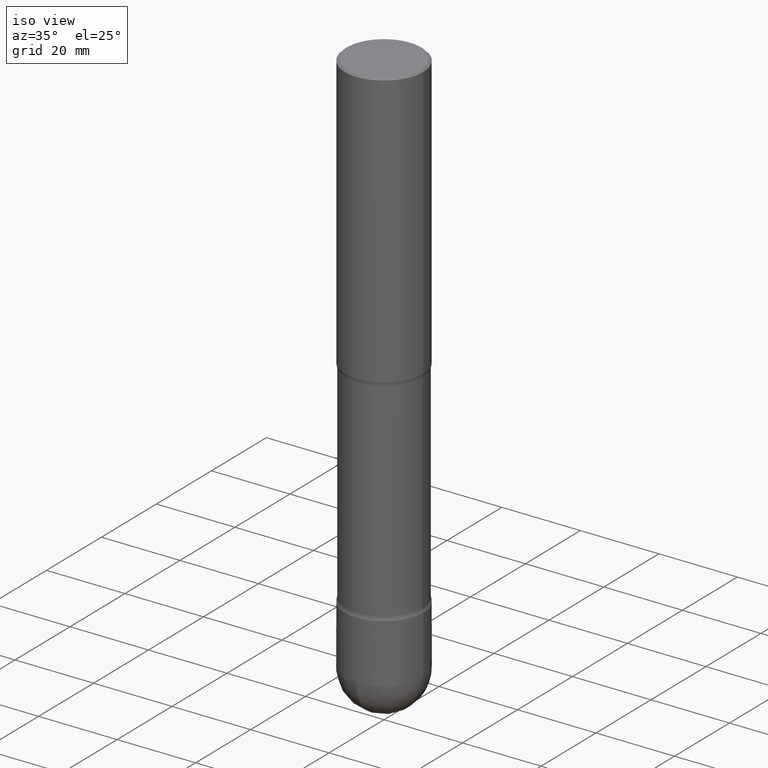
[diagram: clean part render]
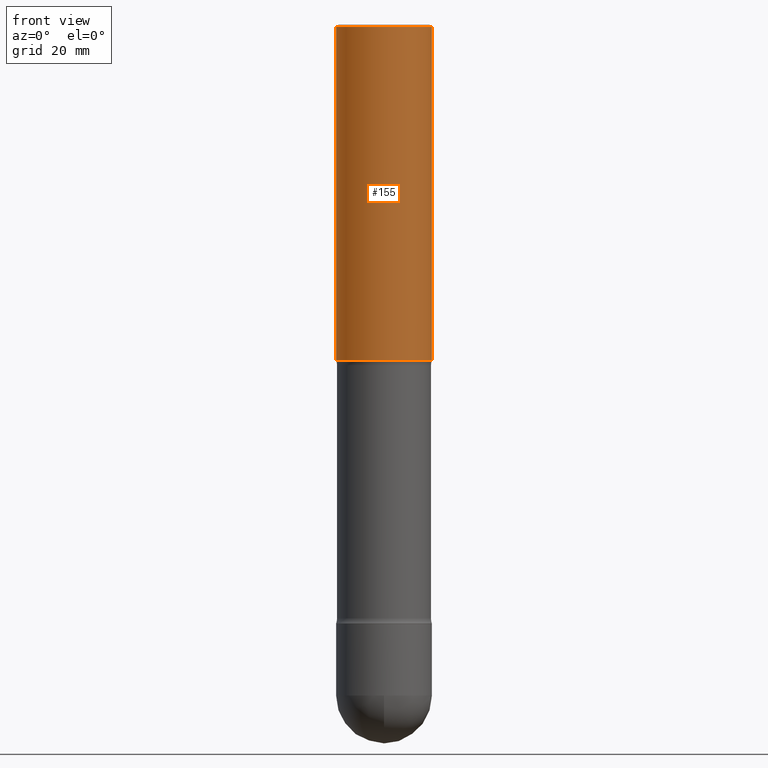
[diagram: tour spotlight — one face highlighted and labeled with its STEP entity id]
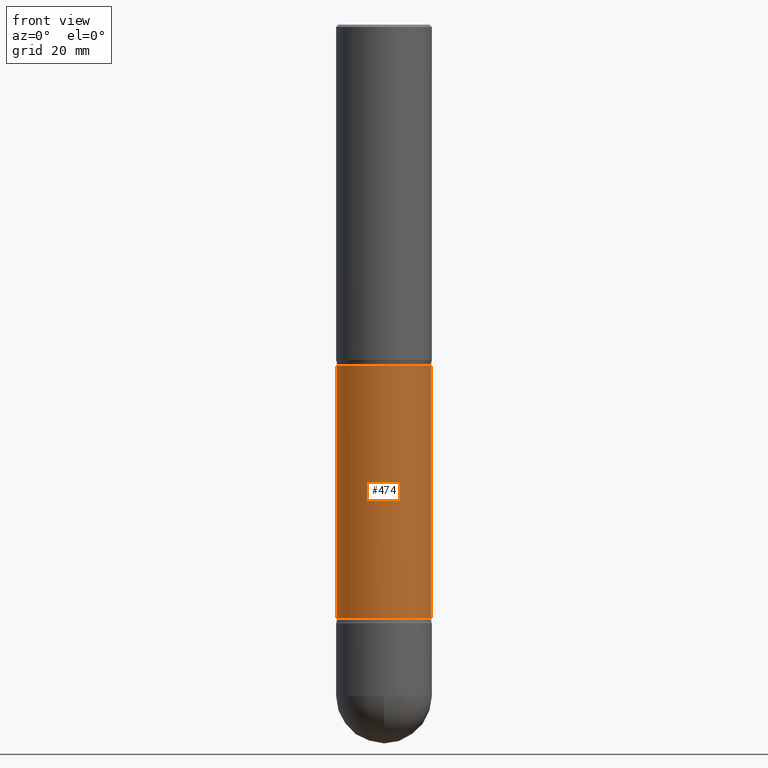
[diagram: tour spotlight — one face highlighted and labeled with its STEP entity id]
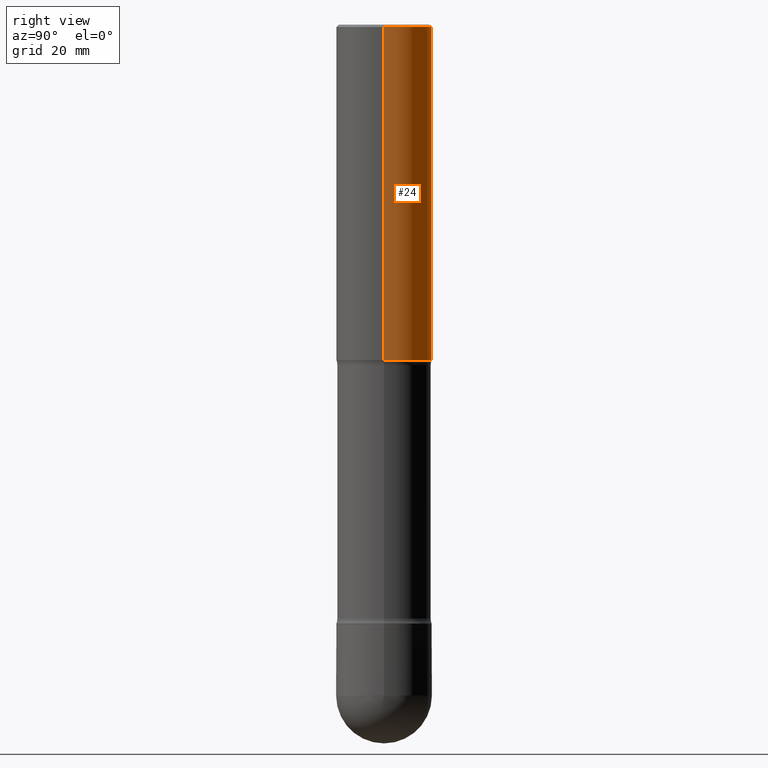
[diagram: tour spotlight — one face highlighted and labeled with its STEP entity id]
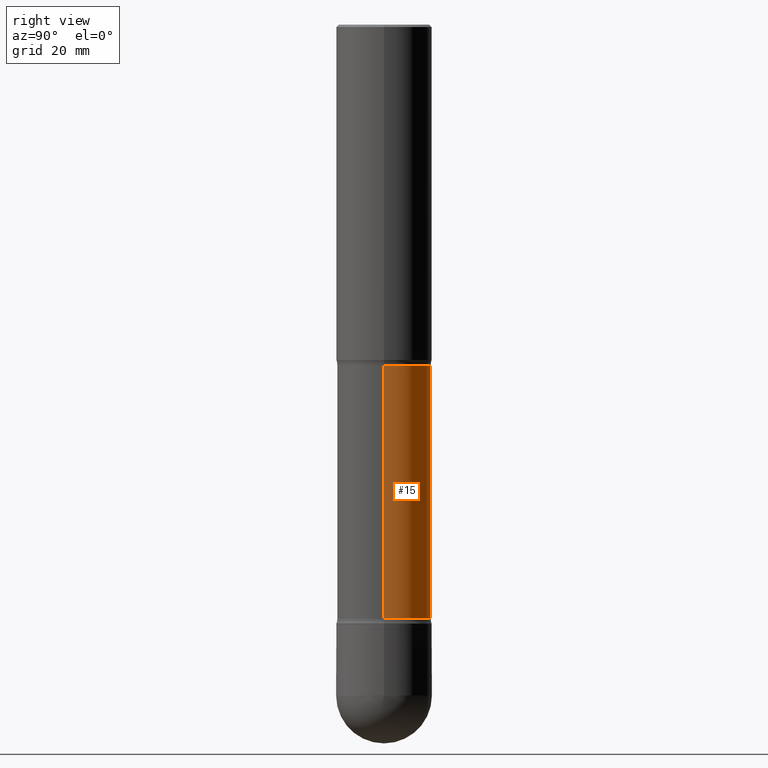
[diagram: tour spotlight — one face highlighted and labeled with its STEP entity id]
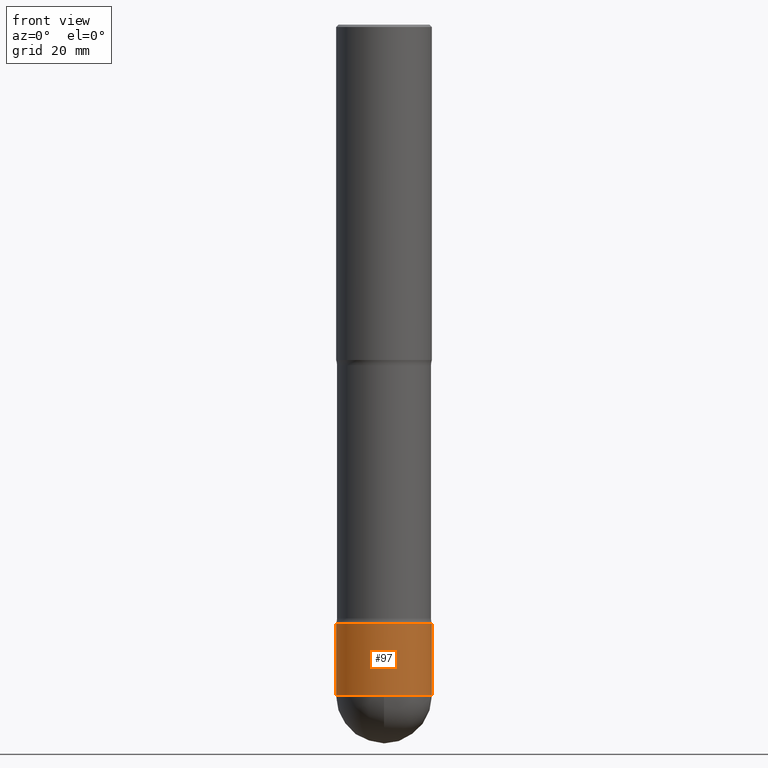
[diagram: tour spotlight — one face highlighted and labeled with its STEP entity id]
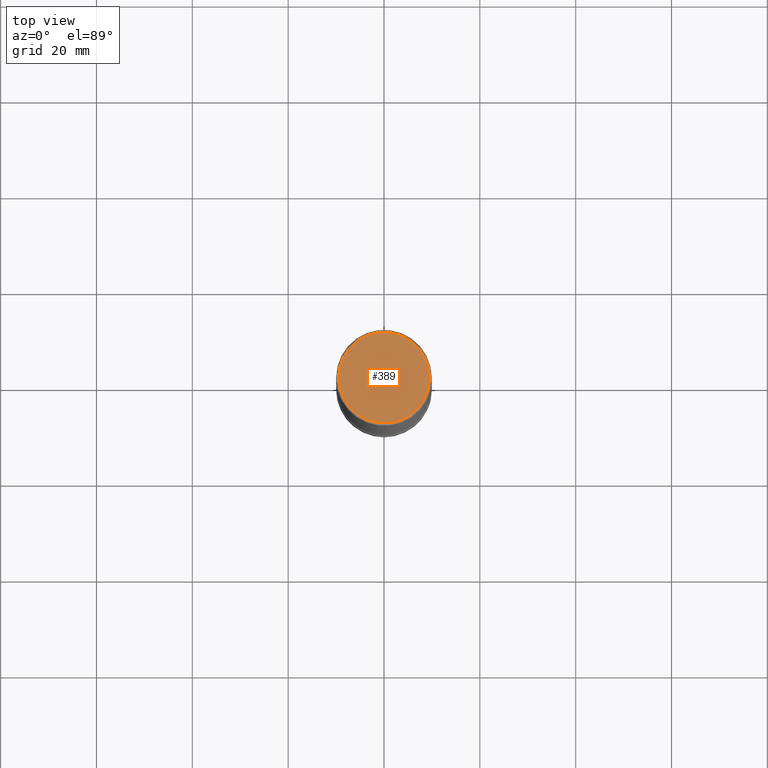
[diagram: tour spotlight — one face highlighted and labeled with its STEP entity id]
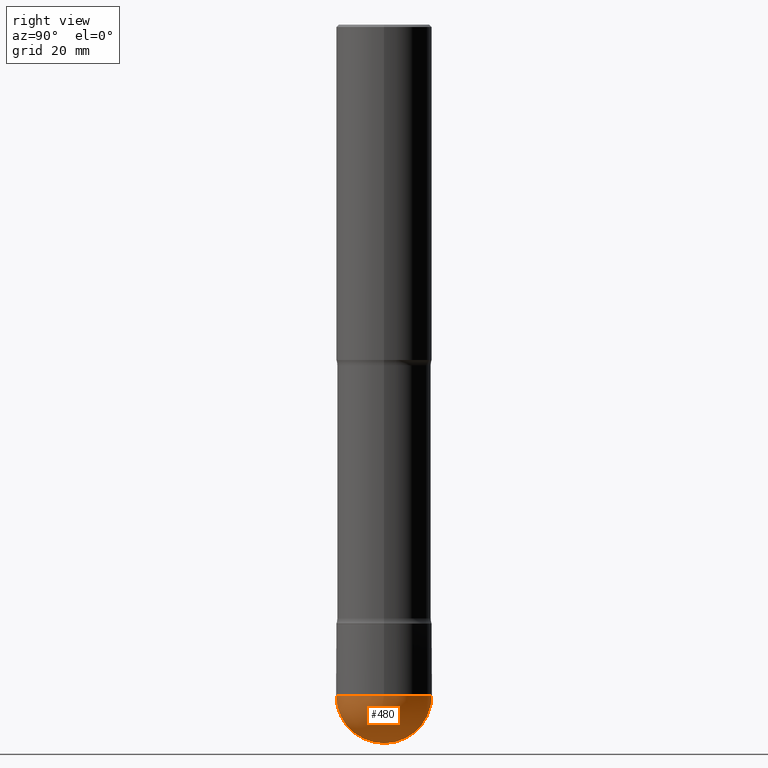
[diagram: tour spotlight — one face highlighted and labeled with its STEP entity id]
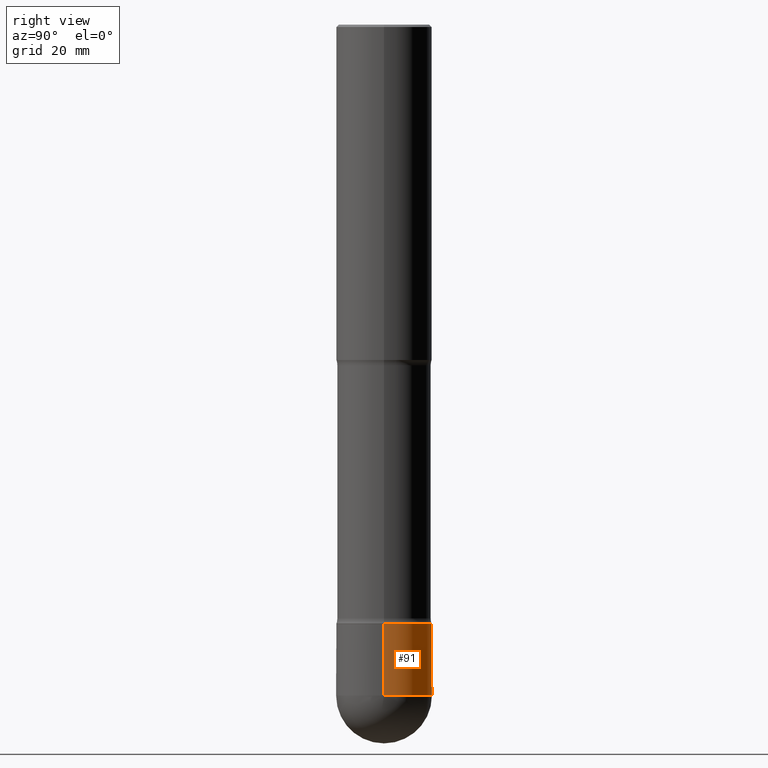
[diagram: tour spotlight — one face highlighted and labeled with its STEP entity id]
A machine part: a face-by-face anatomy tour. The part has 19 B-rep faces; the first image is the clean iso view, then the 8 largest visible faces are spotlighted one at a time (largest first), each with its STEP entity span.

Face 1 — front view, entity #155. In plain terms, the highlighted cylindrical surface (partial cylindrical patch) has radius 10 mm, axis along (0, -0, -1).
Definition (entity closure, byte-faithful):
#10 = DIRECTION ( 'NONE',  ( -1.000000000000000000, 6.982962677686265922E-15, 0.000000000000000000 ) ) ;
#11 = ORIENTED_EDGE ( 'NONE', *, *, #523, .F. ) ;
#21 = AXIS2_PLACEMENT_3D ( 'NONE', #104, #46, #10 ) ;
#46 = DIRECTION ( 'NONE',  ( 2.445468806185136597E-29, -3.491481338843145583E-15, -1.000000000000000000 ) ) ;
#48 = FACE_OUTER_BOUND ( 'NONE', #117, .T. ) ;
#56 = VERTEX_POINT ( 'NONE', #128 ) ;
#63 = VECTOR ( 'NONE', #288, 39.37007874015748143 ) ;
#78 = CARTESIAN_POINT ( 'NONE',  ( -0.3936999999999998279, 2.679362779428217552E-15, -0.02000000000000033348 ) ) ;
#86 = ORIENTED_EDGE ( 'NONE', *, *, #246, .T. ) ;
#99 = CARTESIAN_POINT ( 'NONE',  ( -0.3936999999999998834, -1.443308555850980508E-14, -4.921199999999999797 ) ) ;
#103 = AXIS2_PLACEMENT_3D ( 'NONE', #533, #141, #403 ) ;
#104 = CARTESIAN_POINT ( 'NONE',  ( 1.203464108899829379E-28, -1.718227796471488830E-14, -4.921199999999999797 ) ) ;
#117 = EDGE_LOOP ( 'NONE', ( #11, #422, #86, #534 ) ) ;
#128 = CARTESIAN_POINT ( 'NONE',  ( -0.3936999999999999389, -6.872981015512739596E-15, -2.755899999999999572 ) ) ;
#131 = VERTEX_POINT ( 'NONE', #190 ) ;
#141 = DIRECTION ( 'NONE',  ( 2.445468806185136597E-29, -3.491481338843145583E-15, -1.000000000000000000 ) ) ;
#155 = ADVANCED_FACE ( 'NONE', ( #48 ), #455, .T. ) ;
#166 = LINE ( 'NONE', #171, #283 ) ;
#171 = CARTESIAN_POINT ( 'NONE',  ( 0.3936999999999998834, -1.988325602643753758E-14, -4.921199999999999797 ) ) ;
#186 = EDGE_CURVE ( 'NONE', #131, #479, #351, .T. ) ;
#190 = CARTESIAN_POINT ( 'NONE',  ( 0.3936999999999998279, -2.770807688499514945E-15, -0.02000000000000033348 ) ) ;
#204 = DIRECTION ( 'NONE',  ( -1.000000000000000000, 6.982962677686266711E-15, 0.000000000000000000 ) ) ;
#231 = LINE ( 'NONE', #99, #63 ) ;
#246 = EDGE_CURVE ( 'NONE', #479, #56, #231, .T. ) ;
#283 = VECTOR ( 'NONE', #342, 39.37007874015748143 ) ;
#288 = DIRECTION ( 'NONE',  ( 2.445468806185136877E-29, -3.491481338843145188E-15, -1.000000000000000000 ) ) ;
#292 = CARTESIAN_POINT ( 'NONE',  ( 6.739467482965617111E-29, -9.622173421717822812E-15, -2.755899999999999572 ) ) ;
#312 = CIRCLE ( 'NONE', #385, 0.3936999999999999389 ) ;
#341 = CARTESIAN_POINT ( 'NONE',  ( 0.3936999999999999389, -7.546979585969993124E-15, -2.755899999999999572 ) ) ;
#342 = DIRECTION ( 'NONE',  ( 2.445468806185136877E-29, -3.491481338843145188E-15, -1.000000000000000000 ) ) ;
#351 = CIRCLE ( 'NONE', #103, 0.3936999999999998279 ) ;
#385 = AXIS2_PLACEMENT_3D ( 'NONE', #292, #465, #204 ) ;
#403 = DIRECTION ( 'NONE',  ( -1.000000000000000000, 6.982962677686266711E-15, 0.000000000000000000 ) ) ;
#422 = ORIENTED_EDGE ( 'NONE', *, *, #186, .T. ) ;
#446 = VERTEX_POINT ( 'NONE', #341 ) ;
#455 = CYLINDRICAL_SURFACE ( 'NONE', #21, 0.3936999999999998834 ) ;
#465 = DIRECTION ( 'NONE',  ( 2.445468806185136597E-29, -3.491481338843145583E-15, -1.000000000000000000 ) ) ;
#479 = VERTEX_POINT ( 'NONE', #78 ) ;
#487 = EDGE_CURVE ( 'NONE', #446, #56, #312, .T. ) ;
#523 = EDGE_CURVE ( 'NONE', #131, #446, #166, .T. ) ;
#533 = CARTESIAN_POINT ( 'NONE',  ( 4.890937612370354609E-31, -6.982962677686407473E-17, -0.02000000000000033348 ) ) ;
#534 = ORIENTED_EDGE ( 'NONE', *, *, #487, .F. ) ;

Face 2 — front view, entity #474. In plain terms, the highlighted cylindrical surface (partial cylindrical patch) has radius 9.8095 mm, axis along (0, -0, -1).
Definition (entity closure, byte-faithful):
#3 = ORIENTED_EDGE ( 'NONE', *, *, #286, .T. ) ;
#12 = CIRCLE ( 'NONE', #418, 0.3861999999999995437 ) ;
#27 = DIRECTION ( 'NONE',  ( 2.445468806185136597E-29, -3.491481338843145583E-15, -1.000000000000000000 ) ) ;
#31 = CARTESIAN_POINT ( 'NONE',  ( 1.203464108899829379E-28, -1.718227796471488830E-14, -4.921199999999999797 ) ) ;
#34 = CARTESIAN_POINT ( 'NONE',  ( 0.3861999999999993771, -1.983180229145424743E-14, -4.921199999999999797 ) ) ;
#37 = EDGE_LOOP ( 'NONE', ( #489, #76, #3, #47 ) ) ;
#45 = EDGE_CURVE ( 'NONE', #202, #412, #87, .T. ) ;
#47 = ORIENTED_EDGE ( 'NONE', *, *, #222, .F. ) ;
#60 = CARTESIAN_POINT ( 'NONE',  ( -0.3861999999999993771, -1.448545777859245492E-14, -4.921199999999999797 ) ) ;
#76 = ORIENTED_EDGE ( 'NONE', *, *, #363, .T. ) ;
#87 = LINE ( 'NONE', #34, #505 ) ;
#147 = CARTESIAN_POINT ( 'NONE',  ( 1.193034965701952550E-28, -1.703337743994265175E-14, -4.878553194726920061 ) ) ;
#156 = DIRECTION ( 'NONE',  ( 2.445468806185136877E-29, -3.491481338843145188E-15, -1.000000000000000000 ) ) ;
#163 = AXIS2_PLACEMENT_3D ( 'NONE', #31, #549, #352 ) ;
#191 = VECTOR ( 'NONE', #156, 39.37007874015748143 ) ;
#202 = VERTEX_POINT ( 'NONE', #457 ) ;
#203 = LINE ( 'NONE', #60, #191 ) ;
#222 = EDGE_CURVE ( 'NONE', #412, #427, #12, .T. ) ;
#235 = CIRCLE ( 'NONE', #320, 0.3861999999999991551 ) ;
#286 = EDGE_CURVE ( 'NONE', #333, #427, #203, .T. ) ;
#300 = CARTESIAN_POINT ( 'NONE',  ( -0.3861999999999991551, -7.074253760367628350E-15, -2.798546805273079308 ) ) ;
#320 = AXIS2_PLACEMENT_3D ( 'NONE', #388, #27, #514 ) ;
#333 = VERTEX_POINT ( 'NONE', #300 ) ;
#348 = FACE_OUTER_BOUND ( 'NONE', #37, .T. ) ;
#352 = DIRECTION ( 'NONE',  ( -1.000000000000000000, 6.982962677686267499E-15, 0.000000000000000000 ) ) ;
#363 = EDGE_CURVE ( 'NONE', #202, #333, #235, .T. ) ;
#388 = CARTESIAN_POINT ( 'NONE',  ( 6.843758914944385400E-29, -9.771073946490059360E-15, -2.798546805273079308 ) ) ;
#412 = VERTEX_POINT ( 'NONE', #433 ) ;
#418 = AXIS2_PLACEMENT_3D ( 'NONE', #147, #460, #494 ) ;
#419 = CARTESIAN_POINT ( 'NONE',  ( -0.3861999999999995437, -1.433655725382021838E-14, -4.878553194726920061 ) ) ;
#427 = VERTEX_POINT ( 'NONE', #419 ) ;
#433 = CARTESIAN_POINT ( 'NONE',  ( 0.3861999999999995437, -1.605175001995571548E-14, -4.878553194726920061 ) ) ;
#443 = DIRECTION ( 'NONE',  ( 2.445468806185136877E-29, -3.491481338843145188E-15, -1.000000000000000000 ) ) ;
#457 = CARTESIAN_POINT ( 'NONE',  ( 0.3861999999999991551, -1.237187487833494687E-14, -2.798546805273079308 ) ) ;
#460 = DIRECTION ( 'NONE',  ( 2.445468806185136597E-29, -3.491481338843145583E-15, -1.000000000000000000 ) ) ;
#474 = ADVANCED_FACE ( 'NONE', ( #348 ), #521, .T. ) ;
#489 = ORIENTED_EDGE ( 'NONE', *, *, #45, .F. ) ;
#494 = DIRECTION ( 'NONE',  ( -1.000000000000000000, 6.982962677686269866E-15, 0.000000000000000000 ) ) ;
#505 = VECTOR ( 'NONE', #443, 39.37007874015748143 ) ;
#514 = DIRECTION ( 'NONE',  ( -1.000000000000000000, 6.982962677686266711E-15, 0.000000000000000000 ) ) ;
#521 = CYLINDRICAL_SURFACE ( 'NONE', #163, 0.3861999999999993771 ) ;
#549 = DIRECTION ( 'NONE',  ( 2.445468806185136597E-29, -3.491481338843145583E-15, -1.000000000000000000 ) ) ;

Face 3 — right view, entity #24. In plain terms, the highlighted cylindrical surface (partial cylindrical patch) has radius 10 mm, axis along (0, -0, -1).
Definition (entity closure, byte-faithful):
#6 = DIRECTION ( 'NONE',  ( -1.000000000000000000, 6.982962677686266711E-15, 0.000000000000000000 ) ) ;
#20 = CIRCLE ( 'NONE', #476, 0.3936999999999999389 ) ;
#24 = ADVANCED_FACE ( 'NONE', ( #124 ), #113, .T. ) ;
#56 = VERTEX_POINT ( 'NONE', #128 ) ;
#61 = EDGE_CURVE ( 'NONE', #56, #446, #20, .T. ) ;
#63 = VECTOR ( 'NONE', #288, 39.37007874015748143 ) ;
#78 = CARTESIAN_POINT ( 'NONE',  ( -0.3936999999999998279, 2.679362779428217552E-15, -0.02000000000000033348 ) ) ;
#99 = CARTESIAN_POINT ( 'NONE',  ( -0.3936999999999998834, -1.443308555850980508E-14, -4.921199999999999797 ) ) ;
#113 = CYLINDRICAL_SURFACE ( 'NONE', #438, 0.3936999999999998834 ) ;
#124 = FACE_OUTER_BOUND ( 'NONE', #492, .T. ) ;
#128 = CARTESIAN_POINT ( 'NONE',  ( -0.3936999999999999389, -6.872981015512739596E-15, -2.755899999999999572 ) ) ;
#131 = VERTEX_POINT ( 'NONE', #190 ) ;
#164 = ORIENTED_EDGE ( 'NONE', *, *, #61, .F. ) ;
#166 = LINE ( 'NONE', #171, #283 ) ;
#169 = ORIENTED_EDGE ( 'NONE', *, *, #508, .T. ) ;
#171 = CARTESIAN_POINT ( 'NONE',  ( 0.3936999999999998834, -1.988325602643753758E-14, -4.921199999999999797 ) ) ;
#190 = CARTESIAN_POINT ( 'NONE',  ( 0.3936999999999998279, -2.770807688499514945E-15, -0.02000000000000033348 ) ) ;
#208 = CIRCLE ( 'NONE', #530, 0.3936999999999998279 ) ;
#211 = DIRECTION ( 'NONE',  ( -1.000000000000000000, 6.982962677686266711E-15, 0.000000000000000000 ) ) ;
#219 = DIRECTION ( 'NONE',  ( 2.445468806185136597E-29, -3.491481338843145583E-15, -1.000000000000000000 ) ) ;
#231 = LINE ( 'NONE', #99, #63 ) ;
#246 = EDGE_CURVE ( 'NONE', #479, #56, #231, .T. ) ;
#283 = VECTOR ( 'NONE', #342, 39.37007874015748143 ) ;
#288 = DIRECTION ( 'NONE',  ( 2.445468806185136877E-29, -3.491481338843145188E-15, -1.000000000000000000 ) ) ;
#295 = CARTESIAN_POINT ( 'NONE',  ( 1.203464108899829379E-28, -1.718227796471488830E-14, -4.921199999999999797 ) ) ;
#306 = DIRECTION ( 'NONE',  ( 2.445468806185136597E-29, -3.491481338843145583E-15, -1.000000000000000000 ) ) ;
#341 = CARTESIAN_POINT ( 'NONE',  ( 0.3936999999999999389, -7.546979585969993124E-15, -2.755899999999999572 ) ) ;
#342 = DIRECTION ( 'NONE',  ( 2.445468806185136877E-29, -3.491481338843145188E-15, -1.000000000000000000 ) ) ;
#386 = DIRECTION ( 'NONE',  ( -1.000000000000000000, 6.982962677686265922E-15, 0.000000000000000000 ) ) ;
#425 = CARTESIAN_POINT ( 'NONE',  ( 4.890937612370354609E-31, -6.982962677686407473E-17, -0.02000000000000033348 ) ) ;
#438 = AXIS2_PLACEMENT_3D ( 'NONE', #295, #306, #386 ) ;
#441 = CARTESIAN_POINT ( 'NONE',  ( 6.739467482965617111E-29, -9.622173421717822812E-15, -2.755899999999999572 ) ) ;
#446 = VERTEX_POINT ( 'NONE', #341 ) ;
#476 = AXIS2_PLACEMENT_3D ( 'NONE', #441, #219, #6 ) ;
#479 = VERTEX_POINT ( 'NONE', #78 ) ;
#492 = EDGE_LOOP ( 'NONE', ( #169, #496, #164, #493 ) ) ;
#493 = ORIENTED_EDGE ( 'NONE', *, *, #246, .F. ) ;
#496 = ORIENTED_EDGE ( 'NONE', *, *, #523, .T. ) ;
#508 = EDGE_CURVE ( 'NONE', #479, #131, #208, .T. ) ;
#523 = EDGE_CURVE ( 'NONE', #131, #446, #166, .T. ) ;
#530 = AXIS2_PLACEMENT_3D ( 'NONE', #425, #553, #211 ) ;
#553 = DIRECTION ( 'NONE',  ( 2.445468806185136597E-29, -3.491481338843145583E-15, -1.000000000000000000 ) ) ;

Face 4 — right view, entity #15. In plain terms, the highlighted cylindrical surface (partial cylindrical patch) has radius 9.8095 mm, axis along (0, -0, -1).
Definition (entity closure, byte-faithful):
#15 = ADVANCED_FACE ( 'NONE', ( #520 ), #509, .T. ) ;
#23 = ORIENTED_EDGE ( 'NONE', *, *, #286, .F. ) ;
#26 = CARTESIAN_POINT ( 'NONE',  ( 1.203464108899829379E-28, -1.718227796471488830E-14, -4.921199999999999797 ) ) ;
#34 = CARTESIAN_POINT ( 'NONE',  ( 0.3861999999999993771, -1.983180229145424743E-14, -4.921199999999999797 ) ) ;
#45 = EDGE_CURVE ( 'NONE', #202, #412, #87, .T. ) ;
#60 = CARTESIAN_POINT ( 'NONE',  ( -0.3861999999999993771, -1.448545777859245492E-14, -4.921199999999999797 ) ) ;
#66 = DIRECTION ( 'NONE',  ( 2.445468806185136597E-29, -3.491481338843145583E-15, -1.000000000000000000 ) ) ;
#85 = ORIENTED_EDGE ( 'NONE', *, *, #304, .F. ) ;
#87 = LINE ( 'NONE', #34, #505 ) ;
#111 = CARTESIAN_POINT ( 'NONE',  ( 6.843758914944385400E-29, -9.771073946490059360E-15, -2.798546805273079308 ) ) ;
#156 = DIRECTION ( 'NONE',  ( 2.445468806185136877E-29, -3.491481338843145188E-15, -1.000000000000000000 ) ) ;
#184 = AXIS2_PLACEMENT_3D ( 'NONE', #555, #210, #297 ) ;
#191 = VECTOR ( 'NONE', #156, 39.37007874015748143 ) ;
#202 = VERTEX_POINT ( 'NONE', #457 ) ;
#203 = LINE ( 'NONE', #60, #191 ) ;
#210 = DIRECTION ( 'NONE',  ( 2.445468806185136597E-29, -3.491481338843145583E-15, -1.000000000000000000 ) ) ;
#243 = AXIS2_PLACEMENT_3D ( 'NONE', #111, #383, #551 ) ;
#270 = CIRCLE ( 'NONE', #243, 0.3861999999999991551 ) ;
#285 = EDGE_LOOP ( 'NONE', ( #503, #522, #85, #23 ) ) ;
#286 = EDGE_CURVE ( 'NONE', #333, #427, #203, .T. ) ;
#297 = DIRECTION ( 'NONE',  ( -1.000000000000000000, 6.982962677686269866E-15, 0.000000000000000000 ) ) ;
#300 = CARTESIAN_POINT ( 'NONE',  ( -0.3861999999999991551, -7.074253760367628350E-15, -2.798546805273079308 ) ) ;
#304 = EDGE_CURVE ( 'NONE', #427, #412, #449, .T. ) ;
#333 = VERTEX_POINT ( 'NONE', #300 ) ;
#340 = DIRECTION ( 'NONE',  ( -1.000000000000000000, 6.982962677686267499E-15, 0.000000000000000000 ) ) ;
#383 = DIRECTION ( 'NONE',  ( 2.445468806185136597E-29, -3.491481338843145583E-15, -1.000000000000000000 ) ) ;
#412 = VERTEX_POINT ( 'NONE', #433 ) ;
#419 = CARTESIAN_POINT ( 'NONE',  ( -0.3861999999999995437, -1.433655725382021838E-14, -4.878553194726920061 ) ) ;
#427 = VERTEX_POINT ( 'NONE', #419 ) ;
#433 = CARTESIAN_POINT ( 'NONE',  ( 0.3861999999999995437, -1.605175001995571548E-14, -4.878553194726920061 ) ) ;
#435 = EDGE_CURVE ( 'NONE', #333, #202, #270, .T. ) ;
#443 = DIRECTION ( 'NONE',  ( 2.445468806185136877E-29, -3.491481338843145188E-15, -1.000000000000000000 ) ) ;
#448 = AXIS2_PLACEMENT_3D ( 'NONE', #26, #66, #340 ) ;
#449 = CIRCLE ( 'NONE', #184, 0.3861999999999995437 ) ;
#457 = CARTESIAN_POINT ( 'NONE',  ( 0.3861999999999991551, -1.237187487833494687E-14, -2.798546805273079308 ) ) ;
#503 = ORIENTED_EDGE ( 'NONE', *, *, #435, .T. ) ;
#505 = VECTOR ( 'NONE', #443, 39.37007874015748143 ) ;
#509 = CYLINDRICAL_SURFACE ( 'NONE', #448, 0.3861999999999993771 ) ;
#520 = FACE_OUTER_BOUND ( 'NONE', #285, .T. ) ;
#522 = ORIENTED_EDGE ( 'NONE', *, *, #45, .T. ) ;
#551 = DIRECTION ( 'NONE',  ( -1.000000000000000000, 6.982962677686266711E-15, 0.000000000000000000 ) ) ;
#555 = CARTESIAN_POINT ( 'NONE',  ( 1.193034965701952550E-28, -1.703337743994265175E-14, -4.878553194726920061 ) ) ;

Face 5 — front view, entity #97. In plain terms, the highlighted cylindrical surface (partial cylindrical patch) has radius 10 mm, axis along (-0, 0, 1).
Definition (entity closure, byte-faithful):
#9 = CARTESIAN_POINT ( 'NONE',  ( -0.3936999999999991617, -1.541590565338776243E-14, -4.921199999999999797 ) ) ;
#32 = VECTOR ( 'NONE', #165, 39.37007874015748143 ) ;
#41 = DIRECTION ( 'NONE',  ( 1.000000000000000000, -6.982962677686266711E-15, 4.876176775795935232E-29 ) ) ;
#67 = CARTESIAN_POINT ( 'NONE',  ( 0.3936999999999990507, -2.749192406205076511E-15, 1.919750796630855127E-29 ) ) ;
#74 = EDGE_CURVE ( 'NONE', #528, #136, #260, .T. ) ;
#80 = FACE_OUTER_BOUND ( 'NONE', #513, .T. ) ;
#88 = CARTESIAN_POINT ( 'NONE',  ( -0.3936999999999989952, -1.541590565338776243E-14, -5.511800000000000033 ) ) ;
#97 = ADVANCED_FACE ( 'NONE', ( #80 ), #180, .T. ) ;
#106 = ORIENTED_EDGE ( 'NONE', *, *, #74, .T. ) ;
#116 = EDGE_CURVE ( 'NONE', #528, #547, #365, .T. ) ;
#122 = DIRECTION ( 'NONE',  ( -2.445468806185136597E-29, 3.491481338843145583E-15, 1.000000000000000000 ) ) ;
#126 = CARTESIAN_POINT ( 'NONE',  ( 0.000000000000000000, 0.000000000000000000, 0.000000000000000000 ) ) ;
#136 = VERTEX_POINT ( 'NONE', #282 ) ;
#137 = DIRECTION ( 'NONE',  ( -2.445468806185136597E-29, 3.491481338843145583E-15, 1.000000000000000000 ) ) ;
#144 = ORIENTED_EDGE ( 'NONE', *, *, #116, .F. ) ;
#146 = DIRECTION ( 'NONE',  ( -2.445468806185136877E-29, 3.491481338843145188E-15, 1.000000000000000000 ) ) ;
#149 = ORIENTED_EDGE ( 'NONE', *, *, #329, .T. ) ;
#150 = CARTESIAN_POINT ( 'NONE',  ( -0.3936999999999990507, 2.797406750687507687E-15, -1.936584745033351971E-29 ) ) ;
#154 = DIRECTION ( 'NONE',  ( 1.000000000000000000, -6.982962677686266711E-15, 0.000000000000000000 ) ) ;
#165 = DIRECTION ( 'NONE',  ( -2.445468806185136877E-29, 3.491481338843145188E-15, 1.000000000000000000 ) ) ;
#175 = AXIS2_PLACEMENT_3D ( 'NONE', #361, #137, #316 ) ;
#180 = CYLINDRICAL_SURFACE ( 'NONE', #242, 0.3936999999999990507 ) ;
#192 = VERTEX_POINT ( 'NONE', #490 ) ;
#228 = ORIENTED_EDGE ( 'NONE', *, *, #466, .F. ) ;
#242 = AXIS2_PLACEMENT_3D ( 'NONE', #126, #447, #41 ) ;
#252 = CARTESIAN_POINT ( 'NONE',  ( 0.3936999999999991617, -1.993147037091996521E-14, -4.921199999999999797 ) ) ;
#260 = CIRCLE ( 'NONE', #175, 0.3936999999999989952 ) ;
#282 = CARTESIAN_POINT ( 'NONE',  ( -2.797406750687373580E-15, -0.3937000000000184796, -5.511799999999999145 ) ) ;
#290 = DIRECTION ( 'NONE',  ( -2.445468806185136597E-29, 3.491481338843145583E-15, 1.000000000000000000 ) ) ;
#316 = DIRECTION ( 'NONE',  ( 1.000000000000000000, -6.982962677686266711E-15, 0.000000000000000000 ) ) ;
#329 = EDGE_CURVE ( 'NONE', #192, #397, #548, .T. ) ;
#361 = CARTESIAN_POINT ( 'NONE',  ( 1.347893496593123646E-28, -1.924434684343564878E-14, -5.511800000000000033 ) ) ;
#365 = LINE ( 'NONE', #150, #406 ) ;
#390 = DIRECTION ( 'NONE',  ( 1.000000000000000000, -6.982962677686268288E-15, 0.000000000000000000 ) ) ;
#391 = AXIS2_PLACEMENT_3D ( 'NONE', #517, #122, #390 ) ;
#393 = EDGE_CURVE ( 'NONE', #136, #192, #486, .T. ) ;
#397 = VERTEX_POINT ( 'NONE', #252 ) ;
#406 = VECTOR ( 'NONE', #146, 39.37007874015748143 ) ;
#447 = DIRECTION ( 'NONE',  ( -2.445468806185136597E-29, 3.491481338843145583E-15, 1.000000000000000000 ) ) ;
#458 = AXIS2_PLACEMENT_3D ( 'NONE', #546, #290, #154 ) ;
#466 = EDGE_CURVE ( 'NONE', #547, #397, #550, .T. ) ;
#475 = ORIENTED_EDGE ( 'NONE', *, *, #393, .T. ) ;
#486 = CIRCLE ( 'NONE', #458, 0.3936999999999989952 ) ;
#490 = CARTESIAN_POINT ( 'NONE',  ( 0.3936999999999989952, -2.096250481028034702E-14, -5.511800000000000033 ) ) ;
#513 = EDGE_LOOP ( 'NONE', ( #144, #106, #475, #149, #228 ) ) ;
#517 = CARTESIAN_POINT ( 'NONE',  ( 1.203464108899829379E-28, -1.718227796471488830E-14, -4.921199999999999797 ) ) ;
#528 = VERTEX_POINT ( 'NONE', #88 ) ;
#546 = CARTESIAN_POINT ( 'NONE',  ( 1.347893496593123646E-28, -1.924434684343564878E-14, -5.511800000000000033 ) ) ;
#547 = VERTEX_POINT ( 'NONE', #9 ) ;
#548 = LINE ( 'NONE', #67, #32 ) ;
#550 = CIRCLE ( 'NONE', #391, 0.3936999999999991617 ) ;

Face 6 — top view, entity #389. In plain terms, the highlighted planar face has unit normal (-0, 0, 1).
Definition (entity closure, byte-faithful):
#35 = EDGE_CURVE ( 'NONE', #307, #473, #49, .T. ) ;
#49 = CIRCLE ( 'NONE', #207, 0.3736999999999997546 ) ;
#68 = ORIENTED_EDGE ( 'NONE', *, *, #328, .F. ) ;
#73 = AXIS2_PLACEMENT_3D ( 'NONE', #241, #382, #379 ) ;
#75 = PLANE ( 'NONE',  #177 ) ;
#77 = CARTESIAN_POINT ( 'NONE',  ( 0.000000000000000000, 0.000000000000000000, 0.000000000000000000 ) ) ;
#108 = DIRECTION ( 'NONE',  ( -2.438088387897960049E-29, 3.491481338843145188E-15, 1.000000000000000000 ) ) ;
#118 = FACE_OUTER_BOUND ( 'NONE', #277, .T. ) ;
#159 = DIRECTION ( 'NONE',  ( 1.000000000000000000, -6.982962677686265922E-15, 4.876176775795935793E-29 ) ) ;
#168 = DIRECTION ( 'NONE',  ( 2.445468806185136597E-29, -3.491481338843145583E-15, -1.000000000000000000 ) ) ;
#173 = CARTESIAN_POINT ( 'NONE',  ( -0.3736999999999997546, 2.609533152651356226E-15, -1.822227261114939998E-29 ) ) ;
#177 = AXIS2_PLACEMENT_3D ( 'NONE', #334, #108, #159 ) ;
#207 = AXIS2_PLACEMENT_3D ( 'NONE', #77, #168, #512 ) ;
#241 = CARTESIAN_POINT ( 'NONE',  ( 0.000000000000000000, 0.000000000000000000, 0.000000000000000000 ) ) ;
#277 = EDGE_LOOP ( 'NONE', ( #68, #360 ) ) ;
#307 = VERTEX_POINT ( 'NONE', #337 ) ;
#328 = EDGE_CURVE ( 'NONE', #473, #307, #330, .T. ) ;
#330 = CIRCLE ( 'NONE', #73, 0.3736999999999997546 ) ;
#334 = CARTESIAN_POINT ( 'NONE',  ( 2.609533152651355831E-15, 0.3736999999999997546, -1.300498063835582419E-15 ) ) ;
#337 = CARTESIAN_POINT ( 'NONE',  ( 0.3736999999999997546, -2.667287895133367570E-15, 1.845150283989421736E-29 ) ) ;
#360 = ORIENTED_EDGE ( 'NONE', *, *, #35, .F. ) ;
#379 = DIRECTION ( 'NONE',  ( -1.000000000000000000, 6.982962677686266711E-15, -4.876176775795935793E-29 ) ) ;
#382 = DIRECTION ( 'NONE',  ( 2.445468806185136597E-29, -3.491481338843145583E-15, -1.000000000000000000 ) ) ;
#389 = ADVANCED_FACE ( 'NONE', ( #118 ), #75, .T. ) ;
#473 = VERTEX_POINT ( 'NONE', #173 ) ;
#512 = DIRECTION ( 'NONE',  ( -1.000000000000000000, 6.982962677686266711E-15, -4.876176775795935793E-29 ) ) ;

Face 7 — right view, entity #480. In plain terms, the highlighted spherical surface has radius 10 mm.
Definition (entity closure, byte-faithful):
#4 = VERTEX_POINT ( 'NONE', #426 ) ;
#53 = EDGE_CURVE ( 'NONE', #313, #136, #82, .T. ) ;
#69 = ORIENTED_EDGE ( 'NONE', *, *, #318, .T. ) ;
#71 = SPHERICAL_SURFACE ( 'NONE', #83, 0.3936999999999993838 ) ;
#82 = CIRCLE ( 'NONE', #132, 0.3936999999999993838 ) ;
#83 = AXIS2_PLACEMENT_3D ( 'NONE', #384, #507, #338 ) ;
#89 = ORIENTED_EDGE ( 'NONE', *, *, #53, .F. ) ;
#94 = DIRECTION ( 'NONE',  ( -1.000000000000000000, 7.105427357601001070E-15, -4.926315508542082329E-29 ) ) ;
#125 = EDGE_CURVE ( 'NONE', #192, #4, #529, .T. ) ;
#132 = AXIS2_PLACEMENT_3D ( 'NONE', #398, #94, #274 ) ;
#136 = VERTEX_POINT ( 'NONE', #282 ) ;
#154 = DIRECTION ( 'NONE',  ( 1.000000000000000000, -6.982962677686266711E-15, 0.000000000000000000 ) ) ;
#192 = VERTEX_POINT ( 'NONE', #490 ) ;
#197 = DIRECTION ( 'NONE',  ( -2.445468806185136597E-29, 3.491481338843145583E-15, 1.000000000000000000 ) ) ;
#240 = DIRECTION ( 'NONE',  ( 1.000000000000000000, -6.982962677686266711E-15, 0.000000000000000000 ) ) ;
#245 = CARTESIAN_POINT ( 'NONE',  ( 1.442488208652382782E-28, -2.064305021877940893E-14, -5.905499999999999972 ) ) ;
#274 = DIRECTION ( 'NONE',  ( -7.105427357601001070E-15, -1.000000000000000000, 0.000000000000000000 ) ) ;
#281 = AXIS2_PLACEMENT_3D ( 'NONE', #402, #197, #240 ) ;
#282 = CARTESIAN_POINT ( 'NONE',  ( -2.797406750687373580E-15, -0.3937000000000184796, -5.511799999999999145 ) ) ;
#290 = DIRECTION ( 'NONE',  ( -2.445468806185136597E-29, 3.491481338843145583E-15, 1.000000000000000000 ) ) ;
#311 = ORIENTED_EDGE ( 'NONE', *, *, #125, .F. ) ;
#313 = VERTEX_POINT ( 'NONE', #245 ) ;
#318 = EDGE_CURVE ( 'NONE', #313, #4, #407, .T. ) ;
#323 = EDGE_LOOP ( 'NONE', ( #89, #69, #311, #358 ) ) ;
#338 = DIRECTION ( 'NONE',  ( 6.982962677686265133E-15, 1.000000000000000000, -2.775563112689121034E-15 ) ) ;
#358 = ORIENTED_EDGE ( 'NONE', *, *, #393, .F. ) ;
#384 = CARTESIAN_POINT ( 'NONE',  ( 1.344526706912624446E-28, -1.929256118791808272E-14, -5.511800000000000033 ) ) ;
#393 = EDGE_CURVE ( 'NONE', #136, #192, #486, .T. ) ;
#398 = CARTESIAN_POINT ( 'NONE',  ( 1.344526706912624446E-28, -1.929256118791808272E-14, -5.511800000000000033 ) ) ;
#402 = CARTESIAN_POINT ( 'NONE',  ( 1.347893496593123646E-28, -1.924434684343564878E-14, -5.511800000000000033 ) ) ;
#407 = CIRCLE ( 'NONE', #477, 0.3936999999999993838 ) ;
#420 = FACE_OUTER_BOUND ( 'NONE', #323, .T. ) ;
#424 = CARTESIAN_POINT ( 'NONE',  ( 1.344526706912624446E-28, -1.929256118791808272E-14, -5.511800000000000033 ) ) ;
#426 = CARTESIAN_POINT ( 'NONE',  ( 2.749192406205212195E-15, 0.3936999999999799549, -5.511800000000000921 ) ) ;
#458 = AXIS2_PLACEMENT_3D ( 'NONE', #546, #290, #154 ) ;
#477 = AXIS2_PLACEMENT_3D ( 'NONE', #424, #506, #504 ) ;
#480 = ADVANCED_FACE ( 'NONE', ( #420 ), #71, .T. ) ;
#486 = CIRCLE ( 'NONE', #458, 0.3936999999999989952 ) ;
#490 = CARTESIAN_POINT ( 'NONE',  ( 0.3936999999999989952, -2.096250481028034702E-14, -5.511800000000000033 ) ) ;
#504 = DIRECTION ( 'NONE',  ( 6.982962677686265922E-15, 1.000000000000000000, 0.000000000000000000 ) ) ;
#506 = DIRECTION ( 'NONE',  ( 1.000000000000000000, -6.982962677686265922E-15, 4.883557194083112340E-29 ) ) ;
#507 = DIRECTION ( 'NONE',  ( -1.000000000000000000, 6.982962677686265133E-15, -4.883557194083111780E-29 ) ) ;
#529 = CIRCLE ( 'NONE', #281, 0.3936999999999989952 ) ;
#546 = CARTESIAN_POINT ( 'NONE',  ( 1.347893496593123646E-28, -1.924434684343564878E-14, -5.511800000000000033 ) ) ;

Face 8 — right view, entity #91. In plain terms, the highlighted cylindrical surface (partial cylindrical patch) has radius 10 mm, axis along (-0, 0, 1).
Definition (entity closure, byte-faithful):
#4 = VERTEX_POINT ( 'NONE', #426 ) ;
#9 = CARTESIAN_POINT ( 'NONE',  ( -0.3936999999999991617, -1.541590565338776243E-14, -4.921199999999999797 ) ) ;
#32 = VECTOR ( 'NONE', #165, 39.37007874015748143 ) ;
#43 = DIRECTION ( 'NONE',  ( -2.445468806185136597E-29, 3.491481338843145583E-15, 1.000000000000000000 ) ) ;
#67 = CARTESIAN_POINT ( 'NONE',  ( 0.3936999999999990507, -2.749192406205076511E-15, 1.919750796630855127E-29 ) ) ;
#88 = CARTESIAN_POINT ( 'NONE',  ( -0.3936999999999989952, -1.541590565338776243E-14, -5.511800000000000033 ) ) ;
#90 = CYLINDRICAL_SURFACE ( 'NONE', #417, 0.3936999999999990507 ) ;
#91 = ADVANCED_FACE ( 'NONE', ( #482 ), #90, .T. ) ;
#116 = EDGE_CURVE ( 'NONE', #528, #547, #365, .T. ) ;
#125 = EDGE_CURVE ( 'NONE', #192, #4, #529, .T. ) ;
#142 = CIRCLE ( 'NONE', #430, 0.3936999999999991617 ) ;
#146 = DIRECTION ( 'NONE',  ( -2.445468806185136877E-29, 3.491481338843145188E-15, 1.000000000000000000 ) ) ;
#150 = CARTESIAN_POINT ( 'NONE',  ( -0.3936999999999990507, 2.797406750687507687E-15, -1.936584745033351971E-29 ) ) ;
#165 = DIRECTION ( 'NONE',  ( -2.445468806185136877E-29, 3.491481338843145188E-15, 1.000000000000000000 ) ) ;
#185 = ORIENTED_EDGE ( 'NONE', *, *, #329, .F. ) ;
#189 = EDGE_CURVE ( 'NONE', #397, #547, #142, .T. ) ;
#192 = VERTEX_POINT ( 'NONE', #490 ) ;
#197 = DIRECTION ( 'NONE',  ( -2.445468806185136597E-29, 3.491481338843145583E-15, 1.000000000000000000 ) ) ;
#200 = ORIENTED_EDGE ( 'NONE', *, *, #542, .T. ) ;
#240 = DIRECTION ( 'NONE',  ( 1.000000000000000000, -6.982962677686266711E-15, 0.000000000000000000 ) ) ;
#252 = CARTESIAN_POINT ( 'NONE',  ( 0.3936999999999991617, -1.993147037091996521E-14, -4.921199999999999797 ) ) ;
#267 = DIRECTION ( 'NONE',  ( 1.000000000000000000, -6.982962677686266711E-15, 4.876176775795935232E-29 ) ) ;
#281 = AXIS2_PLACEMENT_3D ( 'NONE', #402, #197, #240 ) ;
#324 = DIRECTION ( 'NONE',  ( 1.000000000000000000, -6.982962677686268288E-15, 0.000000000000000000 ) ) ;
#329 = EDGE_CURVE ( 'NONE', #192, #397, #548, .T. ) ;
#354 = CARTESIAN_POINT ( 'NONE',  ( 0.000000000000000000, 0.000000000000000000, 0.000000000000000000 ) ) ;
#359 = CIRCLE ( 'NONE', #545, 0.3936999999999989952 ) ;
#365 = LINE ( 'NONE', #150, #406 ) ;
#397 = VERTEX_POINT ( 'NONE', #252 ) ;
#402 = CARTESIAN_POINT ( 'NONE',  ( 1.347893496593123646E-28, -1.924434684343564878E-14, -5.511800000000000033 ) ) ;
#406 = VECTOR ( 'NONE', #146, 39.37007874015748143 ) ;
#417 = AXIS2_PLACEMENT_3D ( 'NONE', #354, #525, #267 ) ;
#426 = CARTESIAN_POINT ( 'NONE',  ( 2.749192406205212195E-15, 0.3936999999999799549, -5.511800000000000921 ) ) ;
#430 = AXIS2_PLACEMENT_3D ( 'NONE', #537, #451, #324 ) ;
#451 = DIRECTION ( 'NONE',  ( -2.445468806185136597E-29, 3.491481338843145583E-15, 1.000000000000000000 ) ) ;
#482 = FACE_OUTER_BOUND ( 'NONE', #531, .T. ) ;
#490 = CARTESIAN_POINT ( 'NONE',  ( 0.3936999999999989952, -2.096250481028034702E-14, -5.511800000000000033 ) ) ;
#501 = ORIENTED_EDGE ( 'NONE', *, *, #189, .F. ) ;
#525 = DIRECTION ( 'NONE',  ( -2.445468806185136597E-29, 3.491481338843145583E-15, 1.000000000000000000 ) ) ;
#526 = ORIENTED_EDGE ( 'NONE', *, *, #116, .T. ) ;
#528 = VERTEX_POINT ( 'NONE', #88 ) ;
#529 = CIRCLE ( 'NONE', #281, 0.3936999999999989952 ) ;
#531 = EDGE_LOOP ( 'NONE', ( #200, #526, #501, #185, #556 ) ) ;
#532 = DIRECTION ( 'NONE',  ( 1.000000000000000000, -6.982962677686266711E-15, 0.000000000000000000 ) ) ;
#537 = CARTESIAN_POINT ( 'NONE',  ( 1.203464108899829379E-28, -1.718227796471488830E-14, -4.921199999999999797 ) ) ;
#538 = CARTESIAN_POINT ( 'NONE',  ( 1.347893496593123646E-28, -1.924434684343564878E-14, -5.511800000000000033 ) ) ;
#542 = EDGE_CURVE ( 'NONE', #4, #528, #359, .T. ) ;
#545 = AXIS2_PLACEMENT_3D ( 'NONE', #538, #43, #532 ) ;
#547 = VERTEX_POINT ( 'NONE', #9 ) ;
#548 = LINE ( 'NONE', #67, #32 ) ;
#556 = ORIENTED_EDGE ( 'NONE', *, *, #125, .T. ) ;